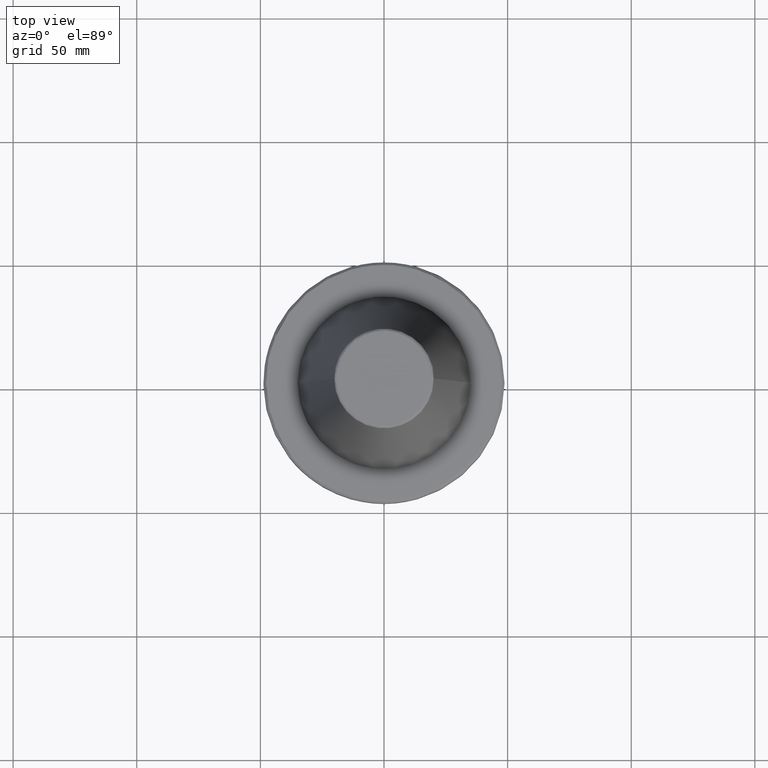
[diagram: clean part render]
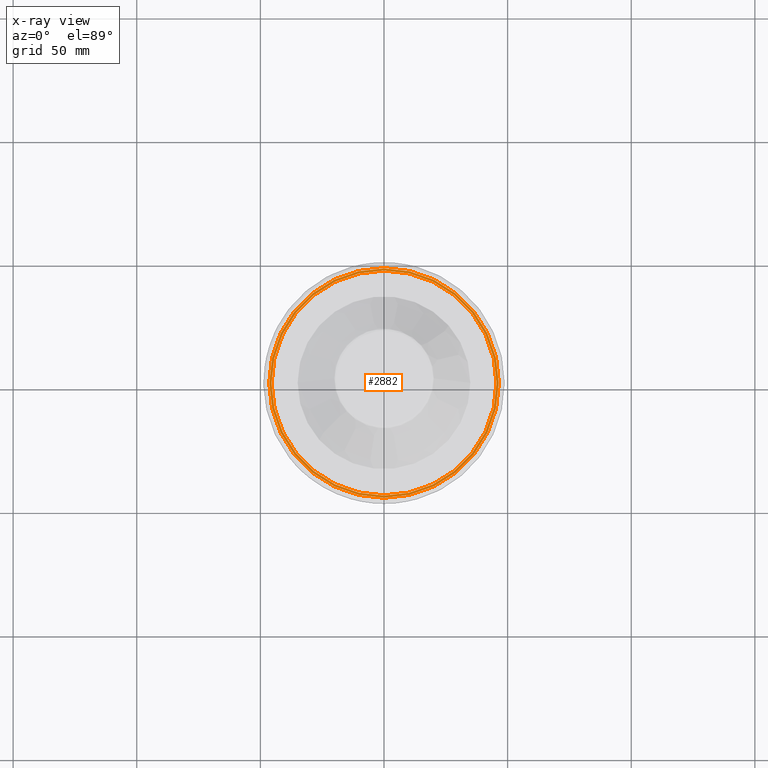
[diagram: x-ray — body ghosted, one internal face saturated and labeled with its STEP entity id]
A machine part, top view, then the same camera in x-ray: the body is ghosted and one INTERNAL B-rep face — a face not visible from any outside direction — is saturated and labeled: STEP entity #2882.
In plain terms, the highlighted planar face has unit normal (0, 0, -1).
Its self-contained STEP definition (entity closure, byte-faithful):
#39 = EDGE_CURVE ( 'NONE', #651, #2482, #2795, .T. ) ;
#40 = CARTESIAN_POINT ( 'NONE',  ( 0.0000000000000000000, 0.0000000000000000000, -9.200000000000001100 ) ) ;
#92 = DIRECTION ( 'NONE',  ( -0.0000000000000000000, -0.0000000000000000000, -1.000000000000000000 ) ) ;
#117 = CIRCLE ( 'NONE', #1111, 46.41589653438085600 ) ;
#136 = DIRECTION ( 'NONE',  ( 0.0000000000000000000, 0.0000000000000000000, -1.000000000000000000 ) ) ;
#314 = DIRECTION ( 'NONE',  ( 1.000000000000000000, 0.0000000000000000000, 0.0000000000000000000 ) ) ;
#410 = FACE_BOUND ( 'NONE', #2214, .T. ) ;
#560 = EDGE_LOOP ( 'NONE', ( #1979, #2184 ) ) ;
#566 = EDGE_CURVE ( 'NONE', #3214, #3300, #2753, .T. ) ;
#651 = VERTEX_POINT ( 'NONE', #2641 ) ;
#680 = CARTESIAN_POINT ( 'NONE',  ( -45.50000000000000000, 5.572142936120457100E-015, -9.199999999999999300 ) ) ;
#682 = CARTESIAN_POINT ( 'NONE',  ( 0.0000000000000000000, 0.0000000000000000000, -9.200000000000001100 ) ) ;
#903 = AXIS2_PLACEMENT_3D ( 'NONE', #1762, #92, #2012 ) ;
#1111 = AXIS2_PLACEMENT_3D ( 'NONE', #40, #1963, #314 ) ;
#1235 = AXIS2_PLACEMENT_3D ( 'NONE', #2655, #2630, #3100 ) ;
#1356 = CARTESIAN_POINT ( 'NONE',  ( -46.41589653438085600, 5.827230528940886900E-015, -9.200000000000001100 ) ) ;
#1453 = FACE_OUTER_BOUND ( 'NONE', #560, .T. ) ;
#1456 = ORIENTED_EDGE ( 'NONE', *, *, #3166, .F. ) ;
#1762 = CARTESIAN_POINT ( 'NONE',  ( 0.0000000000000000000, 0.0000000000000000000, -9.199999999999999300 ) ) ;
#1880 = AXIS2_PLACEMENT_3D ( 'NONE', #2854, #2837, #2812 ) ;
#1963 = DIRECTION ( 'NONE',  ( 0.0000000000000000000, -0.0000000000000000000, 1.000000000000000000 ) ) ;
#1979 = ORIENTED_EDGE ( 'NONE', *, *, #39, .F. ) ;
#2012 = DIRECTION ( 'NONE',  ( 1.000000000000000000, 0.0000000000000000000, 0.0000000000000000000 ) ) ;
#2056 = DIRECTION ( 'NONE',  ( -1.000000000000000000, 0.0000000000000000000, -0.0000000000000000000 ) ) ;
#2184 = ORIENTED_EDGE ( 'NONE', *, *, #2642, .F. ) ;
#2214 = EDGE_LOOP ( 'NONE', ( #1456, #3086 ) ) ;
#2311 = CARTESIAN_POINT ( 'NONE',  ( 45.50000000000000000, 0.0000000000000000000, -9.199999999999999300 ) ) ;
#2482 = VERTEX_POINT ( 'NONE', #1356 ) ;
#2630 = DIRECTION ( 'NONE',  ( 0.0000000000000000000, -0.0000000000000000000, 1.000000000000000000 ) ) ;
#2641 = CARTESIAN_POINT ( 'NONE',  ( 46.41589653438085600, 0.0000000000000000000, -9.200000000000001100 ) ) ;
#2642 = EDGE_CURVE ( 'NONE', #2482, #651, #117, .T. ) ;
#2655 = CARTESIAN_POINT ( 'NONE',  ( 0.0000000000000000000, 0.0000000000000000000, -9.200000000000001100 ) ) ;
#2692 = AXIS2_PLACEMENT_3D ( 'NONE', #682, #136, #2056 ) ;
#2753 = CIRCLE ( 'NONE', #1880, 45.50000000000000000 ) ;
#2795 = CIRCLE ( 'NONE', #1235, 46.41589653438085600 ) ;
#2812 = DIRECTION ( 'NONE',  ( 1.000000000000000000, 0.0000000000000000000, 0.0000000000000000000 ) ) ;
#2837 = DIRECTION ( 'NONE',  ( -0.0000000000000000000, -0.0000000000000000000, -1.000000000000000000 ) ) ;
#2854 = CARTESIAN_POINT ( 'NONE',  ( 0.0000000000000000000, 0.0000000000000000000, -9.199999999999999300 ) ) ;
#2882 = ADVANCED_FACE ( 'NONE', ( #1453, #410 ), #3316, .T. ) ;
#3086 = ORIENTED_EDGE ( 'NONE', *, *, #566, .F. ) ;
#3100 = DIRECTION ( 'NONE',  ( 1.000000000000000000, 0.0000000000000000000, 0.0000000000000000000 ) ) ;
#3166 = EDGE_CURVE ( 'NONE', #3300, #3214, #3198, .T. ) ;
#3198 = CIRCLE ( 'NONE', #903, 45.50000000000000000 ) ;
#3214 = VERTEX_POINT ( 'NONE', #680 ) ;
#3300 = VERTEX_POINT ( 'NONE', #2311 ) ;
#3316 = PLANE ( 'NONE',  #2692 ) ;